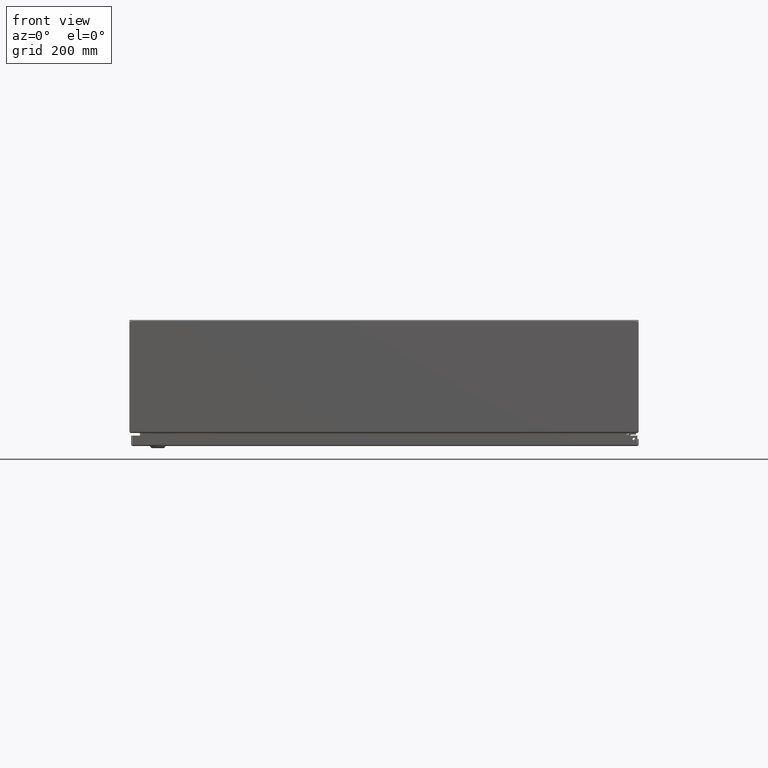
[diagram: clean part render]
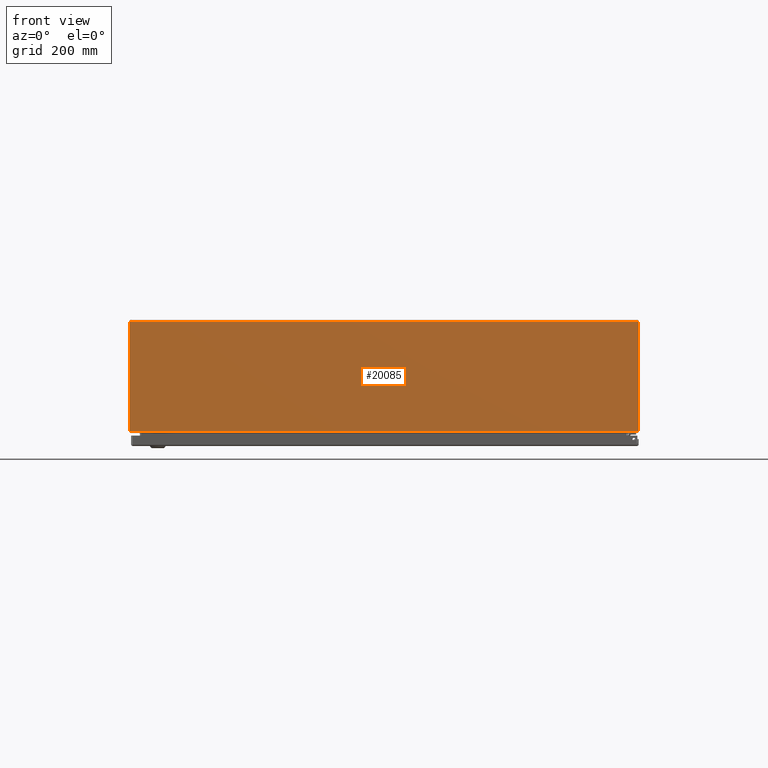
[diagram: same view with one face highlighted and labeled with its STEP entity id]
A machine part, front view. The second image highlights one B-rep face of the part: STEP entity #20085.
In plain terms, the highlighted planar face has unit normal (-0, 1, -0).
Its self-contained STEP definition (entity closure, byte-faithful):
#18533=CARTESIAN_POINT('',(35.914951456543548,7.244861E-015,7.894750000000001));
#18534=VERTEX_POINT('',#18533);
#18563=CARTESIAN_POINT('',(0.085048543456050,7.233933E-015,7.894750000000001));
#18564=VERTEX_POINT('',#18563);
#18578=CARTESIAN_POINT('',(35.914951456543548,2.824731E-015,7.894750000000001));
#18579=DIRECTION('',(-1.0,0.0,0.0));
#18580=VECTOR('',#18579,35.829902913087494);
#18581=LINE('',#18578,#18580);
#18582=EDGE_CURVE('',#18534,#18564,#18581,.T.);
#18750=CARTESIAN_POINT('',(0.037000000000001,2.775558E-015,7.894750000000001));
#18751=VERTEX_POINT('',#18750);
#18758=CARTESIAN_POINT('',(0.085048543456050,2.824731E-015,7.894750000000001));
#18759=DIRECTION('',(-1.0,0.0,0.0));
#18760=VECTOR('',#18759,0.048048543456051);
#18761=LINE('',#18758,#18760);
#18762=EDGE_CURVE('',#18564,#18751,#18761,.T.);
#18773=CARTESIAN_POINT('',(35.962999999999994,2.775558E-015,7.894750000000001));
#18774=VERTEX_POINT('',#18773);
#18775=CARTESIAN_POINT('',(35.962999999999994,2.824731E-015,7.894750000000001));
#18776=DIRECTION('',(-1.0,0.0,0.0));
#18777=VECTOR('',#18776,0.048048543456446);
#18778=LINE('',#18775,#18777);
#18779=EDGE_CURVE('',#18774,#18534,#18778,.T.);
#18804=CARTESIAN_POINT('',(35.962999999999994,1.093259E-015,0.127450135591771));
#18805=VERTEX_POINT('',#18804);
#18806=CARTESIAN_POINT('',(35.962999999999994,3.277911E-015,7.894750000000001));
#18807=DIRECTION('',(0.0,0.0,-1.0));
#18808=VECTOR('',#18807,7.767299864408230);
#18809=LINE('',#18806,#18808);
#18810=EDGE_CURVE('',#18774,#18805,#18809,.T.);
#20017=CARTESIAN_POINT('',(0.117233160675637,1.570505E-015,0.105250000000000));
#20018=VERTEX_POINT('',#20017);
#20025=CARTESIAN_POINT('',(0.037000000000001,1.093259E-015,0.127450135591770));
#20026=VERTEX_POINT('',#20025);
#20027=CARTESIAN_POINT('',(0.062108078884580,1.563557E-015,0.062108078884579));
#20028=DIRECTION('',(0.0,1.0,0.0));
#20029=DIRECTION('',(1.0,0.0,0.0));
#20030=AXIS2_PLACEMENT_3D('',#20027,#20028,#20029);
#20031=CIRCLE('',#20030,0.070000000000000);
#20032=EDGE_CURVE('',#20026,#20018,#20031,.T.);
#20052=CARTESIAN_POINT('',(18.0,2.198351E-015,4.009483078884580));
#20053=DIRECTION('',(0.0,1.0,0.0));
#20054=DIRECTION('',(1.0,0.0,0.0));
#20055=AXIS2_PLACEMENT_3D('',#20052,#20053,#20054);
#20056=PLANE('',#20055);
#20057=ORIENTED_EDGE('',*,*,#18779,.T.);
#20058=ORIENTED_EDGE('',*,*,#18582,.T.);
#20059=ORIENTED_EDGE('',*,*,#18762,.T.);
#20060=CARTESIAN_POINT('',(0.037000000000001,1.552210E-015,0.127450135591770));
#20061=DIRECTION('',(0.0,0.0,1.0));
#20062=VECTOR('',#20061,7.767299864408232);
#20063=LINE('',#20060,#20062);
#20064=EDGE_CURVE('',#20026,#18751,#20063,.T.);
#20065=ORIENTED_EDGE('',*,*,#20064,.F.);
#20066=ORIENTED_EDGE('',*,*,#20032,.T.);
#20067=CARTESIAN_POINT('',(35.882766839324361,1.570505E-015,0.105250000000000));
#20068=VERTEX_POINT('',#20067);
#20069=CARTESIAN_POINT('',(0.117233160675635,1.570494E-015,0.105250000000000));
#20070=DIRECTION('',(1.0,0.0,0.0));
#20071=VECTOR('',#20070,35.765533678648723);
#20072=LINE('',#20069,#20071);
#20073=EDGE_CURVE('',#20018,#20068,#20072,.T.);
#20074=ORIENTED_EDGE('',*,*,#20073,.T.);
#20075=CARTESIAN_POINT('',(35.937891921115423,1.563557E-015,0.062108078884579));
#20076=DIRECTION('',(0.0,1.0,0.0));
#20077=DIRECTION('',(1.0,0.0,0.0));
#20078=AXIS2_PLACEMENT_3D('',#20075,#20076,#20077);
#20079=CIRCLE('',#20078,0.070000000000000);
#20080=EDGE_CURVE('',#20068,#18805,#20079,.T.);
#20081=ORIENTED_EDGE('',*,*,#20080,.T.);
#20082=ORIENTED_EDGE('',*,*,#18810,.F.);
#20083=EDGE_LOOP('',(#20057,#20058,#20059,#20065,#20066,#20074,#20081,#20082));
#20084=FACE_OUTER_BOUND('',#20083,.T.);
#20085=ADVANCED_FACE('',(#20084),#20056,.F.);